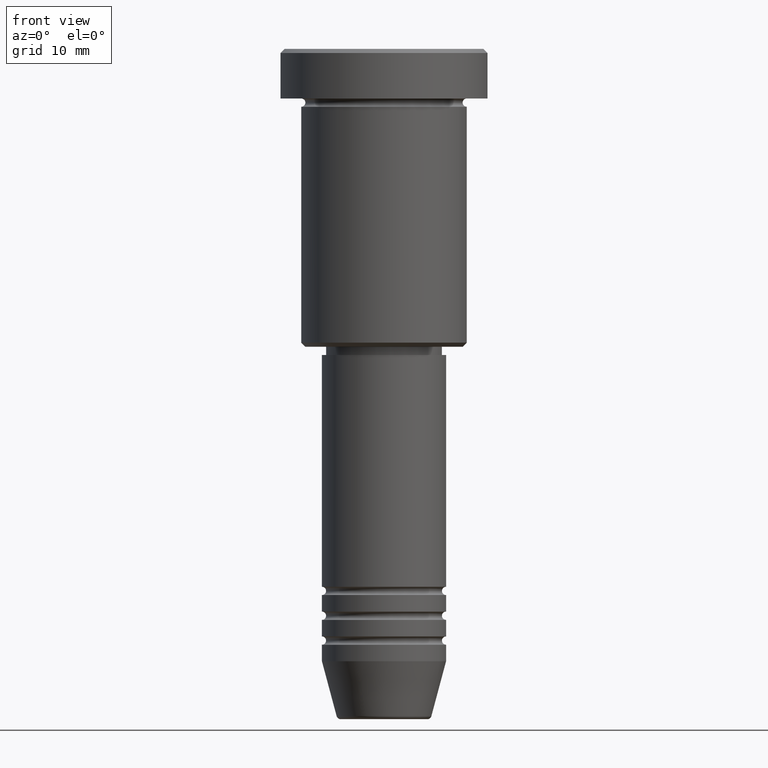
[diagram: clean part render]
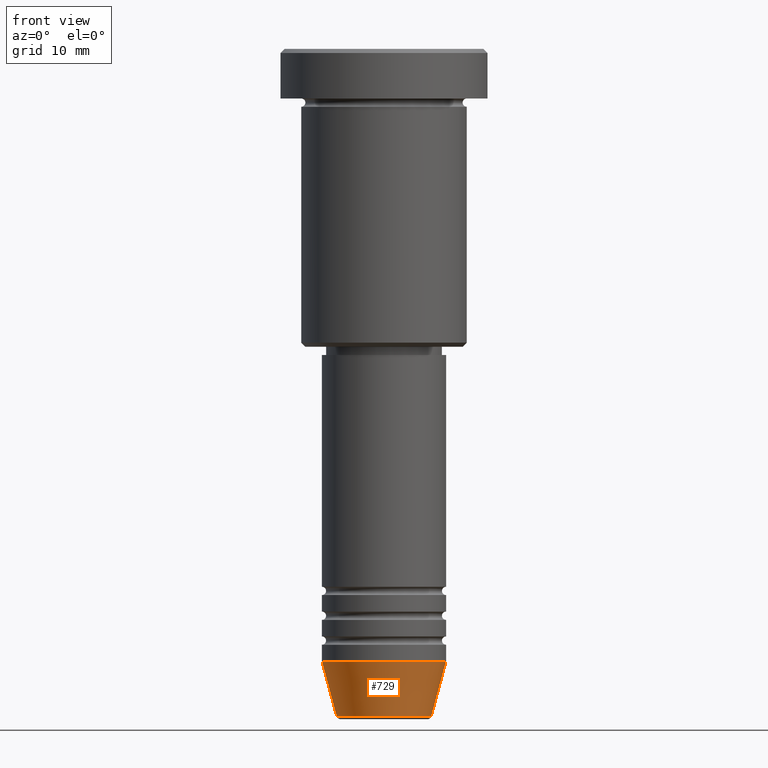
[diagram: same view with one face highlighted and labeled with its STEP entity id]
A machine part, front view. The second image highlights one B-rep face of the part: STEP entity #729.
In plain terms, the highlighted conical surface has half-angle 15 deg.
Its self-contained STEP definition (entity closure, byte-faithful):
#5 = LINE ( 'NONE', #1178, #307 ) ;
#36 = DIRECTION ( 'NONE',  ( 1.000000000000000000, 0.000000000000000000, 0.000000000000000000 ) ) ;
#85 = DIRECTION ( 'NONE',  ( -0.2588190451025213501, 3.169619151431772337E-17, 0.9659258262890680902 ) ) ;
#184 = CIRCLE ( 'NONE', #721, 5.723655072137191269 ) ;
#241 = FACE_OUTER_BOUND ( 'NONE', #707, .T. ) ;
#295 = CARTESIAN_POINT ( 'NONE',  ( 7.500000000000000000, 0.000000000000000000, -74.00000000000000000 ) ) ;
#300 = CARTESIAN_POINT ( 'NONE',  ( 5.723655072137191269, 0.000000000000000000, -80.62940952255125637 ) ) ;
#307 = VECTOR ( 'NONE', #85, 1000.000000000000000 ) ;
#311 = EDGE_CURVE ( 'NONE', #701, #697, #360, .T. ) ;
#323 = CONICAL_SURFACE ( 'NONE', #376, 7.500000000000000000, 0.2617993877991500740 ) ;
#341 = DIRECTION ( 'NONE',  ( -0.000000000000000000, -0.000000000000000000, 1.000000000000000000 ) ) ;
#360 = CIRCLE ( 'NONE', #977, 7.500000000000000000 ) ;
#376 = AXIS2_PLACEMENT_3D ( 'NONE', #692, #889, #424 ) ;
#380 = ORIENTED_EDGE ( 'NONE', *, *, #991, .F. ) ;
#388 = DIRECTION ( 'NONE',  ( -0.000000000000000000, -0.000000000000000000, 1.000000000000000000 ) ) ;
#421 = CARTESIAN_POINT ( 'NONE',  ( 0.000000000000000000, 0.000000000000000000, -74.00000000000000000 ) ) ;
#424 = DIRECTION ( 'NONE',  ( 1.000000000000000000, 0.000000000000000000, 0.000000000000000000 ) ) ;
#487 = CARTESIAN_POINT ( 'NONE',  ( -7.500000000000000000, 9.184850993605147944E-16, -74.00000000000000000 ) ) ;
#557 = CARTESIAN_POINT ( 'NONE',  ( 7.500000000000000000, 0.000000000000000000, -74.00000000000000000 ) ) ;
#570 = LINE ( 'NONE', #557, #607 ) ;
#576 = ORIENTED_EDGE ( 'NONE', *, *, #643, .T. ) ;
#593 = VERTEX_POINT ( 'NONE', #300 ) ;
#607 = VECTOR ( 'NONE', #840, 1000.000000000000000 ) ;
#616 = DIRECTION ( 'NONE',  ( 1.000000000000000000, 0.000000000000000000, 0.000000000000000000 ) ) ;
#621 = EDGE_CURVE ( 'NONE', #593, #697, #570, .T. ) ;
#643 = EDGE_CURVE ( 'NONE', #1125, #593, #184, .T. ) ;
#692 = CARTESIAN_POINT ( 'NONE',  ( 0.000000000000000000, 0.000000000000000000, -74.00000000000000000 ) ) ;
#697 = VERTEX_POINT ( 'NONE', #295 ) ;
#701 = VERTEX_POINT ( 'NONE', #487 ) ;
#707 = EDGE_LOOP ( 'NONE', ( #380, #576, #1106, #1090 ) ) ;
#721 = AXIS2_PLACEMENT_3D ( 'NONE', #1124, #388, #36 ) ;
#729 = ADVANCED_FACE ( 'NONE', ( #241 ), #323, .T. ) ;
#840 = DIRECTION ( 'NONE',  ( 0.2588190451025213501, 0.000000000000000000, 0.9659258262890680902 ) ) ;
#859 = CARTESIAN_POINT ( 'NONE',  ( -5.723655072137191269, 8.097153428560735915E-16, -80.62940952255125637 ) ) ;
#889 = DIRECTION ( 'NONE',  ( -0.000000000000000000, -0.000000000000000000, 1.000000000000000000 ) ) ;
#977 = AXIS2_PLACEMENT_3D ( 'NONE', #421, #341, #616 ) ;
#991 = EDGE_CURVE ( 'NONE', #1125, #701, #5, .T. ) ;
#1090 = ORIENTED_EDGE ( 'NONE', *, *, #311, .F. ) ;
#1106 = ORIENTED_EDGE ( 'NONE', *, *, #621, .T. ) ;
#1124 = CARTESIAN_POINT ( 'NONE',  ( 0.000000000000000000, 0.000000000000000000, -80.62940952255125637 ) ) ;
#1125 = VERTEX_POINT ( 'NONE', #859 ) ;
#1178 = CARTESIAN_POINT ( 'NONE',  ( -7.500000000000000000, 9.184850993605147944E-16, -74.00000000000000000 ) ) ;